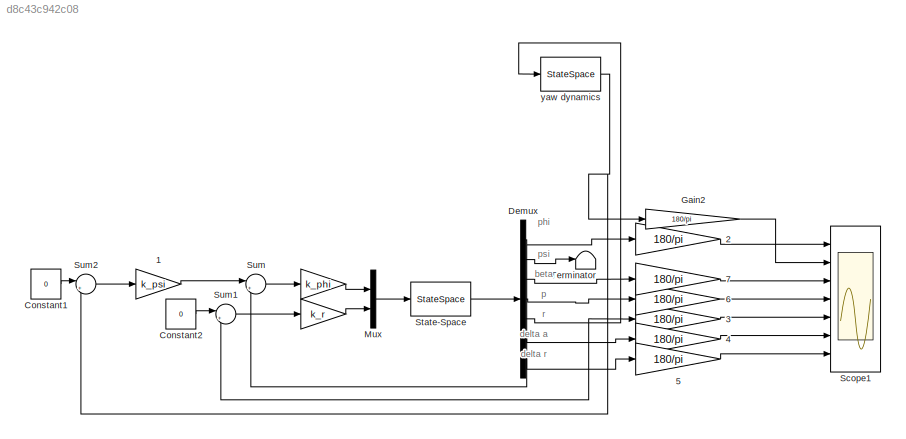
MODEL slx_d8c43c942c08
KIND model
BLOCK [Gain]  
  Gain = k_phi
  OutDataTypeStr = Inherit: Inherit via internal rule
  ParamDataTypeStr = Inherit: Inherit via internal rule
  SaturateOnIntegerOverflow = off
BLOCK [Gain]  1
  Gain = k_psi
  OutDataTypeStr = Inherit: Inherit via internal rule
  ParamDataTypeStr = Inherit: Inherit via internal rule
  SaturateOnIntegerOverflow = off
BLOCK [Gain]  2
  Gain = 180/pi
  OutDataTypeStr = Inherit: Inherit via internal rule
  ParamDataTypeStr = Inherit: Inherit via internal rule
  SaturateOnIntegerOverflow = off
BLOCK [Gain]  3
  Gain = 180/pi
  OutDataTypeStr = Inherit: Inherit via internal rule
  ParamDataTypeStr = Inherit: Inherit via internal rule
  SaturateOnIntegerOverflow = off
BLOCK [Gain]  4
  Gain = 180/pi
  OutDataTypeStr = Inherit: Inherit via internal rule
  ParamDataTypeStr = Inherit: Inherit via internal rule
  SaturateOnIntegerOverflow = off
BLOCK [Gain]  5
  Gain = 180/pi
  OutDataTypeStr = Inherit: Inherit via internal rule
  ParamDataTypeStr = Inherit: Inherit via internal rule
  SaturateOnIntegerOverflow = off
BLOCK [Gain]  6
  Gain = 180/pi
  OutDataTypeStr = Inherit: Inherit via internal rule
  ParamDataTypeStr = Inherit: Inherit via internal rule
  SaturateOnIntegerOverflow = off
BLOCK [Gain]  7
  Gain = 180/pi
  OutDataTypeStr = Inherit: Inherit via internal rule
  ParamDataTypeStr = Inherit: Inherit via internal rule
  SaturateOnIntegerOverflow = off
BLOCK [Constant] Constant1
  Value = 0
BLOCK [Constant] Constant2
  Value = 0
BLOCK [Demux] Demux
  DisplayOption = bar
  Outputs = 7
  Ports = [1, 7]
BLOCK [Gain] Gain2
  Gain = 180/pi
  OutDataTypeStr = Inherit: Inherit via internal rule
  ParamDataTypeStr = Inherit: Inherit via internal rule
  SaturateOnIntegerOverflow = off
BLOCK [Mux] Mux
  DisplayOption = bar
  Inputs = 2
  Ports = [2, 1]
BLOCK [Scope] Scope1
  DataFormat = StructureWithTime
  Floating = off
  NumInputPorts = 7
  Ports = [7]
  SampleTime = 0
  SaveName = ScopeData1
  ShowLegends = off
  YMax = 5~5~5~5~5~5~5
  YMin = -5~-5~-5~-5~-5~-5~-5
BLOCK [StateSpace] State-Space
  A = A
  B = B
  C = C
  D = D
  Ports = [1, 1]
  X0 = 0
BLOCK [Sum] Sum
  IconShape = round
  InputSameDT = off
  Inputs = |+-
  OutDataTypeStr = Inherit: Inherit via internal rule
  Ports = [2, 1]
  SaturateOnIntegerOverflow = off
BLOCK [Sum] Sum1
  IconShape = round
  InputSameDT = off
  Inputs = |+-
  OutDataTypeStr = Inherit: Inherit via internal rule
  Ports = [2, 1]
  SaturateOnIntegerOverflow = off
BLOCK [Sum] Sum2
  IconShape = round
  InputSameDT = off
  Inputs = |+-
  OutDataTypeStr = Inherit: Inherit via internal rule
  Ports = [2, 1]
  SaturateOnIntegerOverflow = off
BLOCK [Terminator] Terminator
BLOCK [StateSpace] yaw dynamics
  A = 0
  D = 0
  Ports = [1, 1]
  X0 = 30*pi/180
ANNOTATION (root): beta
ANNOTATION (root): delta a
ANNOTATION (root): delta r
ANNOTATION (root): p
ANNOTATION (root): phi
ANNOTATION (root): psi
ANNOTATION (root): r
LINE  1:1 -> Sum:1
LINE  2:1 -> Scope1:1
LINE  3:1 -> Scope1:5
LINE  4:1 -> Scope1:6
LINE  5:1 -> Scope1:7
LINE  6:1 -> Scope1:4
LINE  7:1 -> Scope1:3
NET  :1 -> Mux:1, Mux:2
LINE Constant1:1 -> Sum2:1
LINE Constant2:1 -> Sum1:1
NET Demux:1 ->  2:1, Sum:2
LINE Demux:2 -> Terminator:1
LINE Demux:3 ->  7:1
LINE Demux:4 ->  6:1
NET Demux:5 ->  3:1, Sum1:2, yaw dynamics:1
LINE Demux:6 ->  4:1
LINE Demux:7 ->  5:1
LINE Gain2:1 -> Scope1:2
LINE Mux:1 -> State-Space:1
LINE State-Space:1 -> Demux:1
LINE Sum1:1 ->  :1
LINE Sum2:1 ->  1:1
LINE Sum:1 ->  :1
NET yaw dynamics:1 -> Gain2:1, Sum2:2
note: NET lines group one-source signal fan-out (src -> all destinations, sorted); 1:1 wires keep LINE
